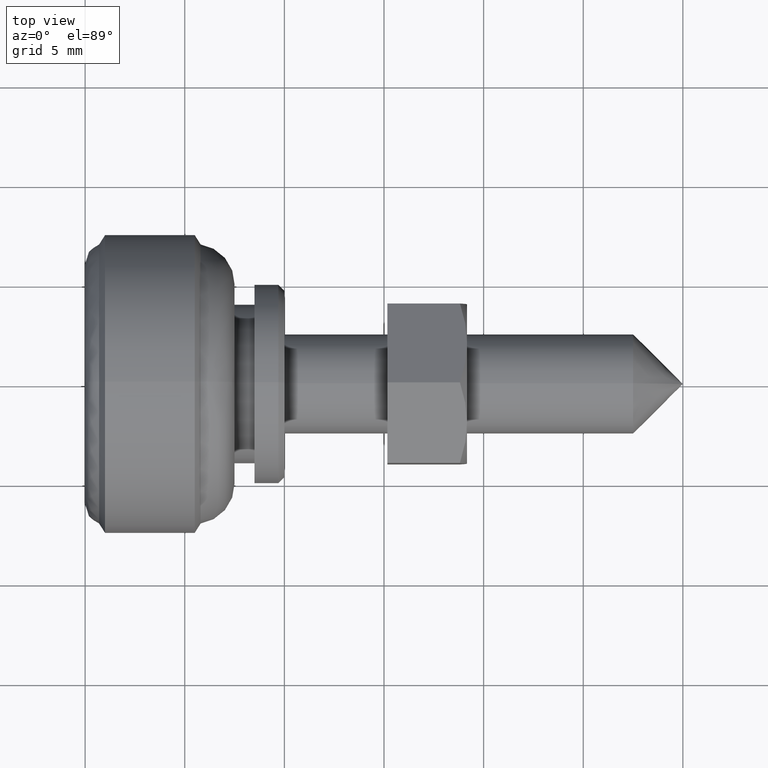
[diagram: clean part render]
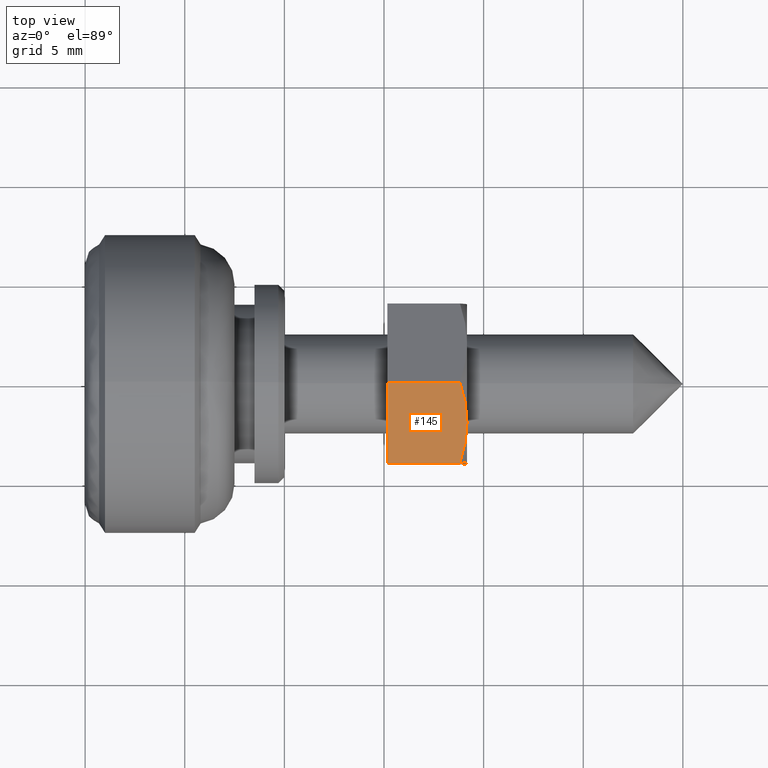
[diagram: same view with one face highlighted and labeled with its STEP entity id]
A machine part, top view. The second image highlights one B-rep face of the part: STEP entity #145.
In plain terms, the highlighted planar face has unit normal (0, -0.5, 0.866).
Its self-contained STEP definition (entity closure, byte-faithful):
#145=ADVANCED_FACE('',(#487),#486,.T.);
#486=PLANE('',#869);
#487=FACE_OUTER_BOUND('',#870,.T.);
#866=CARTESIAN_POINT('',(-4.84974226119E+00,4.00000000000E-01,-4.00000000000E-01));
#867=DIRECTION('',(-8.66025403784E-01,-5.00000000000E-01,0.00000000000E+00));
#868=DIRECTION('',(5.00000000000E-01,-8.66025403784E-01,0.00000000000E+00));
#869=AXIS2_PLACEMENT_3D('',#866,#867,#868);
#870=EDGE_LOOP('',(#1039,#1040,#1041,#1042,#1043));
#1039=ORIENTED_EDGE('',*,*,#1145,.T.);
#1040=ORIENTED_EDGE('',*,*,#1147,.T.);
#1041=ORIENTED_EDGE('',*,*,#1148,.T.);
#1042=ORIENTED_EDGE('',*,*,#1149,.F.);
#1043=ORIENTED_EDGE('',*,*,#1150,.T.);
#1145=EDGE_CURVE('',#1629,#1622,#1630,.T.);
#1147=EDGE_CURVE('',#1622,#1542,#1642,.T.);
#1148=EDGE_CURVE('',#1542,#1648,#1649,.T.);
#1149=EDGE_CURVE('',#1655,#1648,#1656,.T.);
#1150=EDGE_CURVE('',#1655,#1629,#1662,.T.);
#1542=VERTEX_POINT('',#1960);
#1622=VERTEX_POINT('',#2009);
#1629=VERTEX_POINT('',#2016);
#1630=LINE('',#2017,#2018);
#1642=(BOUNDED_CURVE() B_SPLINE_CURVE(3,(#2023,#2024,#2025,#2026),.UNSPECIFIED.,.F.,.F.) B_SPLINE_CURVE_WITH_KNOTS((4,4),(2.38073758161E-07,2.33697415164E-03),.UNSPECIFIED.) CURVE() GEOMETRIC_REPRESENTATION_ITEM() RATIONAL_B_SPLINE_CURVE((1.00000000000E+00,1.00000000000E+00,1.00000000000E+00,1.00000000000E+00)) REPRESENTATION_ITEM('') );
#1648=VERTEX_POINT('',#2027);
#1649=(BOUNDED_CURVE() B_SPLINE_CURVE(3,(#2028,#2029,#2030,#2031,#2032,#2033),.UNSPECIFIED.,.F.,.F.) B_SPLINE_CURVE_WITH_KNOTS((4,2,4),(2.33697415164E-03,3.50097588572E-03,4.66497761979E-03),.UNSPECIFIED.) CURVE() GEOMETRIC_REPRESENTATION_ITEM() RATIONAL_B_SPLINE_CURVE((1.00000000000E+00,1.00000000000E+00,1.00000000000E+00,1.00000000000E+00,1.00000000000E+00,1.00000000000E+00)) REPRESENTATION_ITEM('') );
#1655=VERTEX_POINT('',#2034);
#1656=LINE('',#2035,#2036);
#1662=LINE('',#2038,#2039);
#1960=CARTESIAN_POINT('',(-3.46410161514E+00,-2.00000000000E+00,4.00000000000E+00));
#2009=CARTESIAN_POINT('',(-2.30940107676E+00,-4.00000000000E+00,3.64273441009E+00));
#2016=CARTESIAN_POINT('',(-2.30940107676E+00,-4.00000000000E+00,0.00000000000E+00));
#2017=CARTESIAN_POINT('',(-2.30940107676E+00,-4.00000000000E+00,0.00000000000E+00));
#2018=VECTOR('',#2019,3.64273441009E+00);
#2019=DIRECTION('',(0.00000000000E+00,0.00000000000E+00,1.00000000000E+00));
#2023=CARTESIAN_POINT('',(-2.30940107676E+00,-4.00000000000E+00,3.64273441009E+00));
#2024=CARTESIAN_POINT('',(-2.68718798015E+00,-3.34565388888E+00,3.86084978046E+00));
#2025=CARTESIAN_POINT('',(-3.07064709237E+00,-2.68148322390E+00,4.00000000000E+00));
#2026=CARTESIAN_POINT('',(-3.46410161514E+00,-2.00000000000E+00,4.00000000000E+00));
#2027=CARTESIAN_POINT('',(-4.61880215352E+00,4.33680868994E-16,3.64273441009E+00));
#2028=CARTESIAN_POINT('',(-3.46410161514E+00,-2.00000000000E+00,4.00000000000E+00));
#2029=CARTESIAN_POINT('',(-3.66009368763E+00,-1.66053177255E+00,4.00000000000E+00));
#2030=CARTESIAN_POINT('',(-3.85583069325E+00,-1.32150533391E+00,3.96578971905E+00));
#2031=CARTESIAN_POINT('',(-4.24038600042E+00,-6.55436003562E-01,3.84132451847E+00));
#2032=CARTESIAN_POINT('',(-4.43038009443E+00,-3.26356579598E-01,3.75151993662E+00));
#2033=CARTESIAN_POINT('',(-4.61880215352E+00,6.38551127352E-14,3.64273441009E+00));
#2034=CARTESIAN_POINT('',(-4.61880215352E+00,6.66133814775E-16,0.00000000000E+00));
#2035=CARTESIAN_POINT('',(-4.61880215352E+00,6.66133814775E-16,0.00000000000E+00));
#2036=VECTOR('',#2037,3.64273441009E+00);
#2037=DIRECTION('',(0.00000000000E+00,0.00000000000E+00,1.00000000000E+00));
#2038=CARTESIAN_POINT('',(-4.61880215352E+00,7.21644966006E-16,0.00000000000E+00));
#2039=VECTOR('',#2040,4.61880215352E+00);
#2040=DIRECTION('',(5.00000000000E-01,-8.66025403784E-01,0.00000000000E+00));